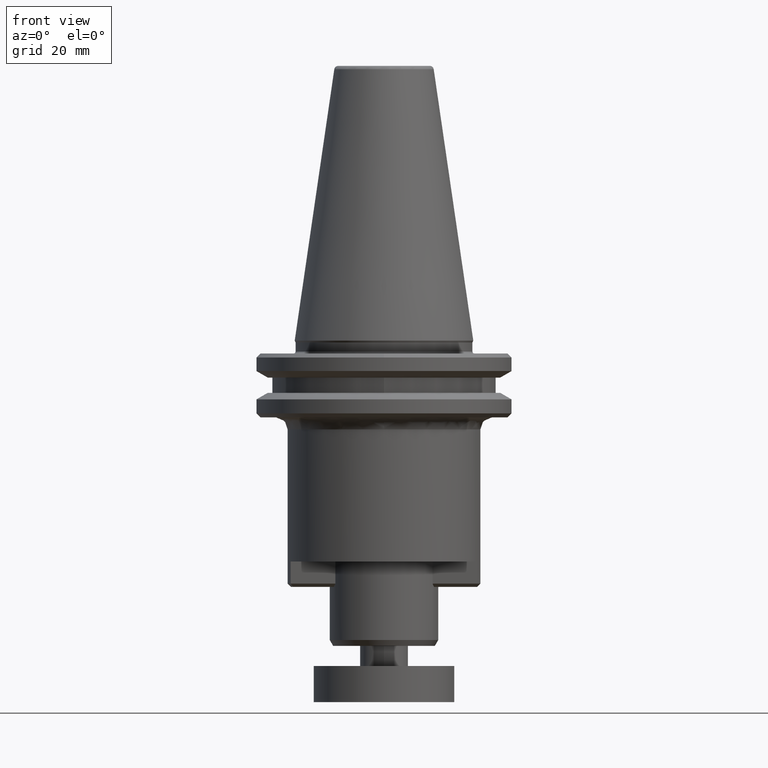
[diagram: clean part render]
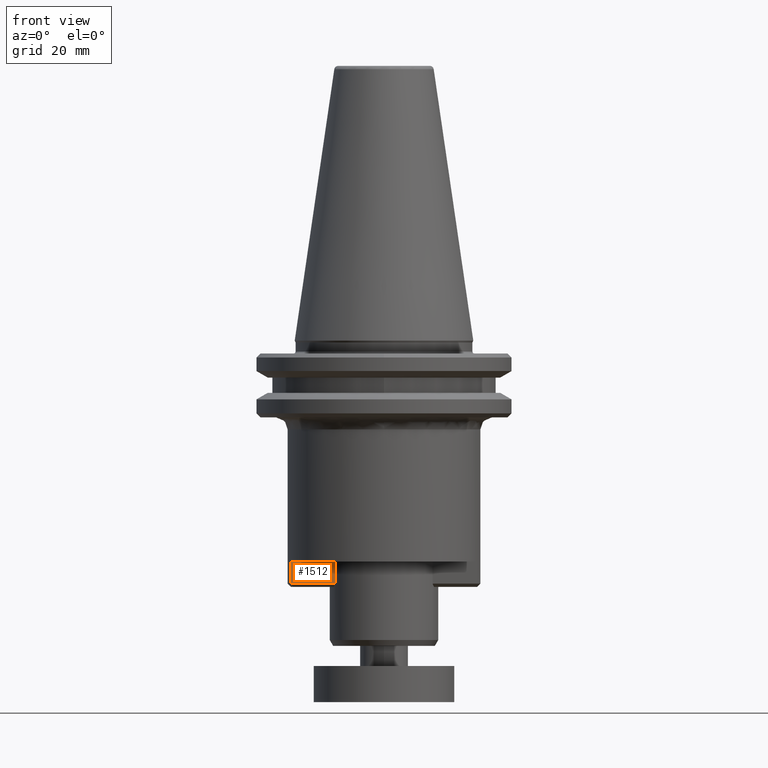
[diagram: same view with one face highlighted and labeled with its STEP entity id]
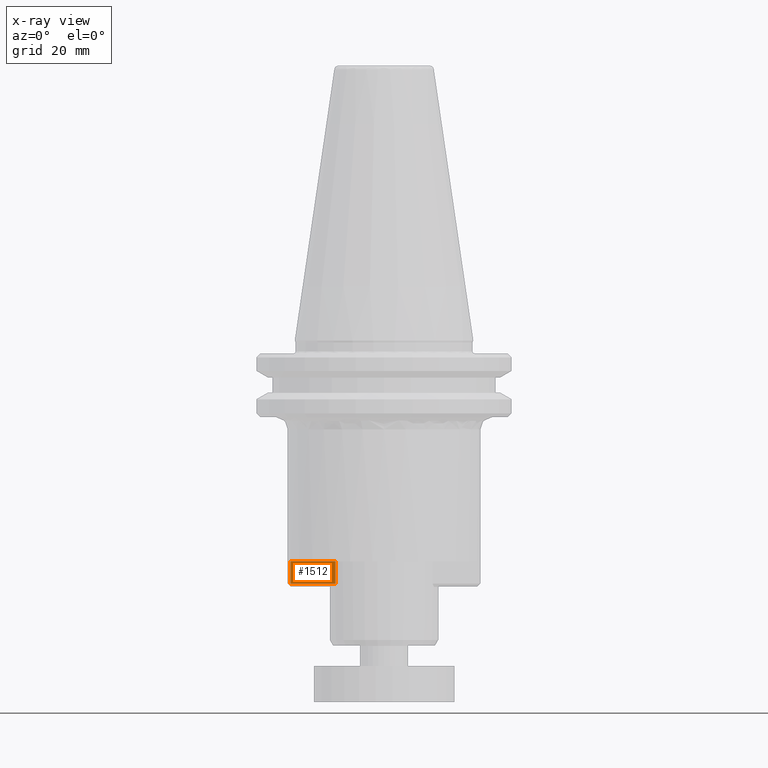
[diagram: x-ray of the same camera — body ghosted, the highlighted face saturated]
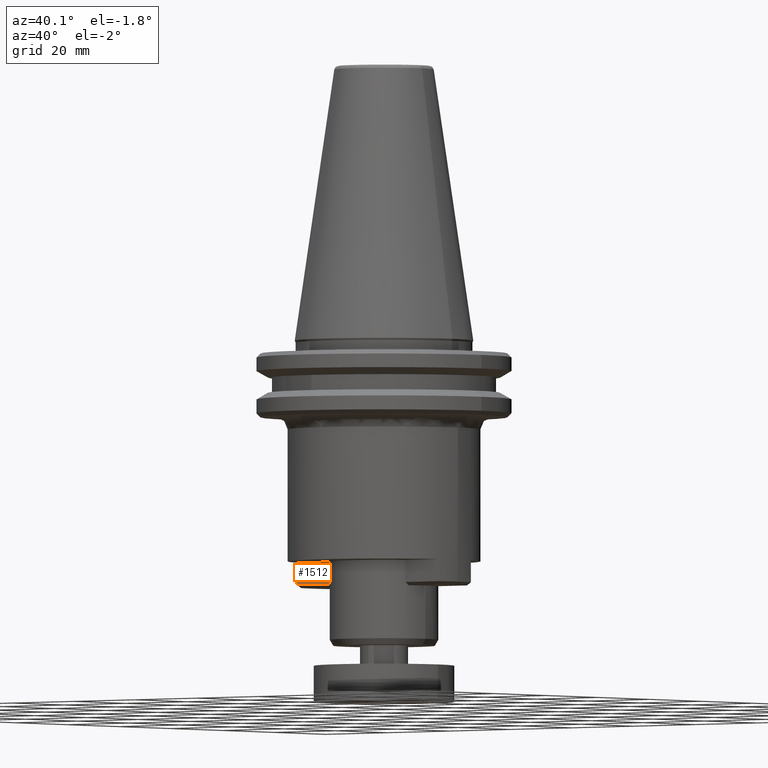
[diagram: same view with one face highlighted and labeled with its STEP entity id]
A machine part, front view. The second image highlights one B-rep face of the part: STEP entity #1512.
The next image is the same camera in x-ray: the body ghosted, the highlighted face saturated — about 0% of this face is hidden behind the body in this view.
A second angle (auxiliary view) of the same face is appended — the face is thin or edge-on in the first view.
In plain terms, the highlighted planar face has unit normal (0, 1, 0).
Its self-contained STEP definition (entity closure, byte-faithful):
#112 = EDGE_CURVE ( 'NONE', #832, #665, #282, .T. ) ;
#282 = LINE ( 'NONE', #629, #295 ) ;
#295 = VECTOR ( 'NONE', #1307, 1000.000000000000000 ) ;
#351 = DIRECTION ( 'NONE',  ( 1.000000000000000000, -0.0000000000000000000, -0.0000000000000000000 ) ) ;
#422 = CARTESIAN_POINT ( 'NONE',  ( -12.09338662351931900, -5.999999998560221000, -60.50000000287955300 ) ) ;
#429 = VECTOR ( 'NONE', #952, 1000.000000000000000 ) ;
#585 = AXIS2_PLACEMENT_3D ( 'NONE', #1932, #2264, #1163 ) ;
#629 = CARTESIAN_POINT ( 'NONE',  ( -12.09338662200000100, -6.000000000000000000, -60.50000000287955300 ) ) ;
#665 = VERTEX_POINT ( 'NONE', #1937 ) ;
#777 = EDGE_CURVE ( 'NONE', #2112, #1086, #1728, .T. ) ;
#825 = ORIENTED_EDGE ( 'NONE', *, *, #972, .F. ) ;
#832 = VERTEX_POINT ( 'NONE', #422 ) ;
#844 = CARTESIAN_POINT ( 'NONE',  ( -23.23790007712485600, -6.000000000463394700, -54.99999999749999100 ) ) ;
#952 = DIRECTION ( 'NONE',  ( 6.424901762877064700E-017, 0.0000000000000000000, 1.000000000000000000 ) ) ;
#970 = PLANE ( 'NONE',  #585 ) ;
#972 = EDGE_CURVE ( 'NONE', #665, #2112, #1071, .T. ) ;
#1020 = ORIENTED_EDGE ( 'NONE', *, *, #777, .F. ) ;
#1071 = LINE ( 'NONE', #2387, #1944 ) ;
#1086 = VERTEX_POINT ( 'NONE', #1660 ) ;
#1139 = ORIENTED_EDGE ( 'NONE', *, *, #1479, .T. ) ;
#1163 = DIRECTION ( 'NONE',  ( 0.0000000000000000000, 0.0000000000000000000, -1.000000000000000000 ) ) ;
#1307 = DIRECTION ( 'NONE',  ( -1.000000000000000000, 0.0000000000000000000, 0.0000000000000000000 ) ) ;
#1470 = FACE_OUTER_BOUND ( 'NONE', #2179, .T. ) ;
#1479 = EDGE_CURVE ( 'NONE', #832, #1086, #2285, .T. ) ;
#1512 = ADVANCED_FACE ( 'NONE', ( #1470 ), #970, .F. ) ;
#1564 = CARTESIAN_POINT ( 'NONE',  ( 23.51675487800000000, -6.000000000366139100, -55.00000000000000000 ) ) ;
#1660 = CARTESIAN_POINT ( 'NONE',  ( -12.09338662307132500, -5.999999999554715300, -55.00000000197500300 ) ) ;
#1728 = LINE ( 'NONE', #1564, #1991 ) ;
#1921 = ORIENTED_EDGE ( 'NONE', *, *, #112, .F. ) ;
#1932 = CARTESIAN_POINT ( 'NONE',  ( -12.09338662200000100, -6.000000000000000000, -55.00000000000000000 ) ) ;
#1937 = CARTESIAN_POINT ( 'NONE',  ( -23.23790007705543200, -6.000000000549203300, -60.50000000143978000 ) ) ;
#1944 = VECTOR ( 'NONE', #2309, 1000.000000000000000 ) ;
#1991 = VECTOR ( 'NONE', #351, 1000.000000000000000 ) ;
#2081 = CARTESIAN_POINT ( 'NONE',  ( -12.09338662387648500, -5.999999997120442100, -61.29999999999999700 ) ) ;
#2112 = VERTEX_POINT ( 'NONE', #844 ) ;
#2179 = EDGE_LOOP ( 'NONE', ( #1139, #1020, #825, #1921 ) ) ;
#2264 = DIRECTION ( 'NONE',  ( 0.0000000000000000000, 1.000000000000000000, 0.0000000000000000000 ) ) ;
#2285 = LINE ( 'NONE', #2081, #429 ) ;
#2309 = DIRECTION ( 'NONE',  ( 0.0000000000000000000, 0.0000000000000000000, 1.000000000000000000 ) ) ;
#2387 = CARTESIAN_POINT ( 'NONE',  ( -23.23790007705542800, -6.000000000732278200, -60.50000000000000000 ) ) ;